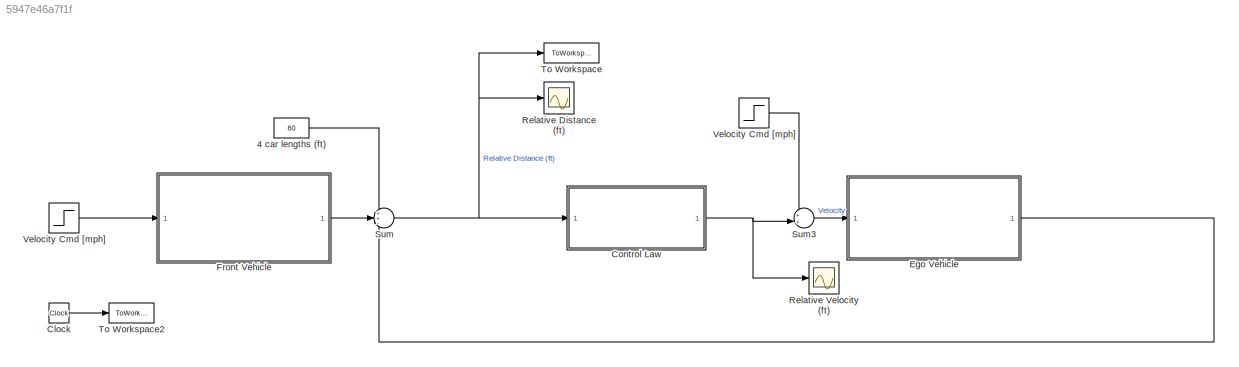
MODEL slx_5947e46a7f1f
KIND model
CONFIG AbsTol = auto
CONFIG EnableMultiTasking = off
CONFIG FixedStep = 0.05
CONFIG MaxStep = auto
CONFIG MinStep = auto
CONFIG RelTol = 1e-3
CONFIG SampleTimeConstraint = Unconstrained
CONFIG Solver = FixedStepAuto
CONFIG SolverName = FixedStepAuto
CONFIG StartTime = 0.0
CONFIG StopTime = 40
BLOCK [Constant] 4 car lengths (ft)
  Value = 60
BLOCK [Clock] Clock
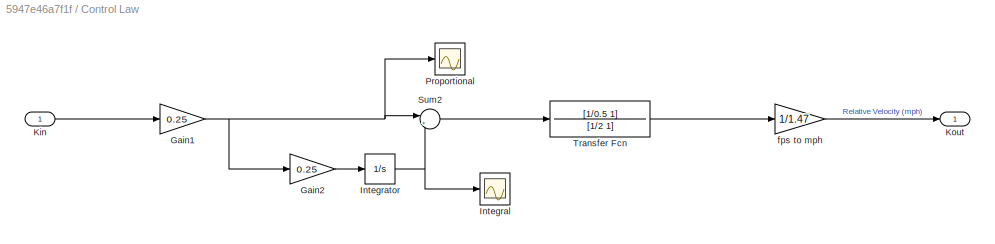
BLOCK [SubSystem] Control Law
  Ports = [1, 1]
  RequestExecContextInheritance = off
BLOCK [Gain] Control Law/Gain1
  Gain = 0.25
  OutDataTypeStr = Inherit: Inherit via internal rule
  ParamDataTypeStr = Inherit: Inherit via internal rule
  SaturateOnIntegerOverflow = off
BLOCK [Gain] Control Law/Gain2
  Gain = 0.25
  OutDataTypeStr = Inherit: Inherit via internal rule
  ParamDataTypeStr = Inherit: Inherit via internal rule
  SaturateOnIntegerOverflow = off
BLOCK [Scope] Control Law/Integral
  Floating = off
  NumInputPorts = 1
  Ports = [1]
  ScopeSpecificationString = Simulink.scopes.TimeScopeBlockCfg('CurrentConfiguration', extmgr.ConfigurationSet(extmgr.Configuration('Core','General UI',true),extmgr.Configuration('Core','Source UI',true),extmgr.Configuration('Sources','WiredSimulink',true,'DataLoggingVariableName','ScopeData3'),extmgr.Configuration('Visuals','Time Domain',true,'SerializedDisplays',{struct('MinYLimReal','-2.60562','MaxYLimReal','23.45057','YLa...<+1402ch>
BLOCK [Integrator] Control Law/Integrator
  Ports = [1, 1]
BLOCK [Inport] Control Law/Kin
  IconDisplay = Port number
BLOCK [Outport] Control Law/Kout
  IconDisplay = Port number
BLOCK [Scope] Control Law/Proportional
  Floating = off
  NumInputPorts = 1
  Ports = [1]
  ScopeSpecificationString = Simulink.scopes.TimeScopeBlockCfg('CurrentConfiguration', extmgr.ConfigurationSet(extmgr.Configuration('Core','General UI',true),extmgr.Configuration('Core','Source UI',true),extmgr.Configuration('Sources','WiredSimulink',true,'DataLoggingVariableName','ScopeData4'),extmgr.Configuration('Visuals','Time Domain',true,'SerializedDisplays',{struct('MinYLimReal','-2.10687','MaxYLimReal','33.56743','YLa...<+1397ch>
BLOCK [Sum] Control Law/Sum2
  IconShape = round
  InputSameDT = off
  Inputs = |++
  OutDataTypeStr = Inherit: Inherit via internal rule
  Ports = [2, 1]
  SaturateOnIntegerOverflow = off
BLOCK [TransferFcn] Control Law/Transfer Fcn
  Denominator = [1/2 1]
  Numerator = [1/0.5 1]
BLOCK [Gain] Control Law/fps to mph
  Gain = 1/1.47
  OutDataTypeStr = Inherit: Inherit via internal rule
  ParamDataTypeStr = Inherit: Inherit via internal rule
  SaturateOnIntegerOverflow = off
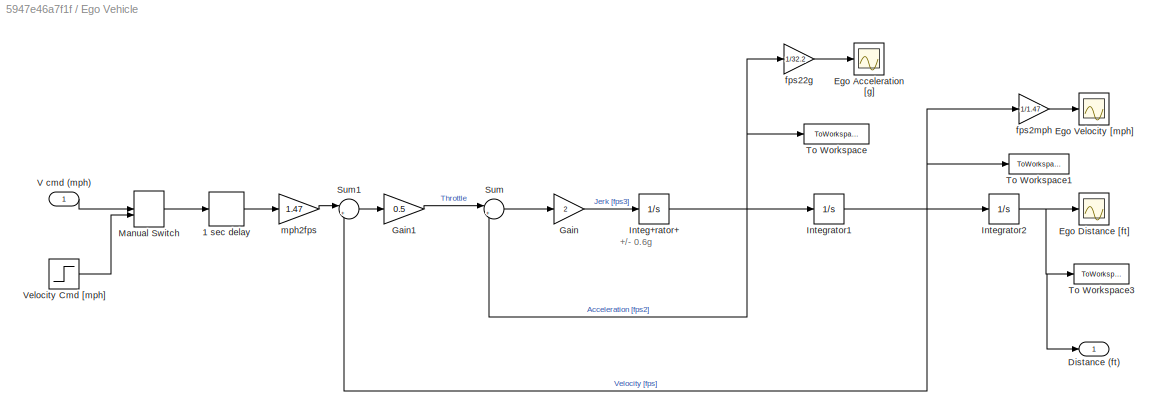
BLOCK [SubSystem] Ego Vehicle
  Ports = [1, 1]
  RequestExecContextInheritance = off
BLOCK [Delay] Ego Vehicle/1 sec delay
  DelayLength = 1
  InitialCondition = 45
  InputPortMap = u0
  Ports = [1, 1]
BLOCK [Outport] Ego Vehicle/Distance (ft)
  IconDisplay = Port number
BLOCK [Scope] Ego Vehicle/Ego Acceleration [g]
  Floating = off
  NumInputPorts = 1
  Ports = [1]
  ScopeSpecificationString = Simulink.scopes.TimeScopeBlockCfg('CurrentConfiguration', extmgr.ConfigurationSet(extmgr.Configuration('Core','General UI',true),extmgr.Configuration('Core','Source UI',true),extmgr.Configuration('Sources','WiredSimulink',true,'DataLoggingVariableName','ScopeData2'),extmgr.Configuration('Visuals','Time Domain',true,'SerializedDisplays',{struct('MinYLimReal','-0.16419','MaxYLimReal','0.68491','YLab...<+1440ch>
BLOCK [Scope] Ego Vehicle/Ego Distance [ft]
  Floating = off
  NumInputPorts = 1
  Ports = [1]
  ScopeSpecificationString = Simulink.scopes.TimeScopeBlockCfg('CurrentConfiguration', extmgr.ConfigurationSet(extmgr.Configuration('Core','General UI',true),extmgr.Configuration('Core','Source UI',true),extmgr.Configuration('Sources','WiredSimulink',true),extmgr.Configuration('Visuals','Time Domain',true,'SerializedDisplays',{struct('MinYLimReal','-413.69182','MaxYLimReal','3723.22634','YLabelReal','','MinYLimMag',' 0.00000'...<+1379ch>
BLOCK [Scope] Ego Vehicle/Ego Velocity [mph]
  Floating = off
  NumInputPorts = 1
  Ports = [1]
  ScopeSpecificationString = Simulink.scopes.TimeScopeBlockCfg('CurrentConfiguration', extmgr.ConfigurationSet(extmgr.Configuration('Core','General UI',true),extmgr.Configuration('Core','Source UI',true),extmgr.Configuration('Sources','WiredSimulink',true,'DataLoggingVariableName','ScopeData1'),extmgr.Configuration('Visuals','Time Domain',true,'SerializedDisplays',{struct('MinYLimReal','41.90679','MaxYLimReal','72.83889','YLa...<+1427ch>
BLOCK [Gain] Ego Vehicle/Gain
  Gain = 2
  OutDataTypeStr = Inherit: Inherit via internal rule
  ParamDataTypeStr = Inherit: Inherit via internal rule
  SaturateOnIntegerOverflow = off
BLOCK [Gain] Ego Vehicle/Gain1
  Gain = 0.5
  OutDataTypeStr = Inherit: Inherit via internal rule
  ParamDataTypeStr = Inherit: Inherit via internal rule
  SaturateOnIntegerOverflow = off
BLOCK [Integrator] Ego Vehicle/Integ+rator+
  LimitOutput = on
  LowerSaturationLimit = -0.6*32.2
  Ports = [1, 1]
  UpperSaturationLimit = 0.6*32.2
BLOCK [Integrator] Ego Vehicle/Integrator1
  InitialCondition = 45*1.47
  Ports = [1, 1]
BLOCK [Integrator] Ego Vehicle/Integrator2
  Ports = [1, 1]
BLOCK [ManualSwitch] Ego Vehicle/Manual Switch
BLOCK [Sum] Ego Vehicle/Sum
  IconShape = round
  InputSameDT = off
  Inputs = |+-
  OutDataTypeStr = Inherit: Inherit via internal rule
  Ports = [2, 1]
  SaturateOnIntegerOverflow = off
BLOCK [Sum] Ego Vehicle/Sum1
  IconShape = round
  InputSameDT = off
  Inputs = |+-
  OutDataTypeStr = Inherit: Inherit via internal rule
  Ports = [2, 1]
  SaturateOnIntegerOverflow = off
BLOCK [ToWorkspace] Ego Vehicle/To Workspace
  FixptAsFi = on
  MaxDataPoints = inf
  Ports = [1]
  SampleTime = -1
  Save2DSignal = 3-D array (concatenate along third dimension)
  VariableName = accel_ego
BLOCK [ToWorkspace] Ego Vehicle/To Workspace1
  FixptAsFi = on
  MaxDataPoints = inf
  Ports = [1]
  SampleTime = -1
  Save2DSignal = 3-D array (concatenate along third dimension)
  VariableName = vel_ego
BLOCK [ToWorkspace] Ego Vehicle/To Workspace3
  FixptAsFi = on
  MaxDataPoints = inf
  Ports = [1]
  SampleTime = -1
  Save2DSignal = 3-D array (concatenate along third dimension)
  VariableName = dist_ego
BLOCK [Inport] Ego Vehicle/V cmd (mph)
  IconDisplay = Port number
BLOCK [Step] Ego Vehicle/Velocity Cmd [mph]
  After = 0
  Before = 20
  SampleTime = 0
  Time = 0
BLOCK [Gain] Ego Vehicle/fps22g
  Gain = 1/32.2
  OutDataTypeStr = Inherit: Inherit via internal rule
  ParamDataTypeStr = Inherit: Inherit via internal rule
  SaturateOnIntegerOverflow = off
BLOCK [Gain] Ego Vehicle/fps2mph
  Gain = 1/1.47
  OutDataTypeStr = Inherit: Inherit via internal rule
  ParamDataTypeStr = Inherit: Inherit via internal rule
  SaturateOnIntegerOverflow = off
BLOCK [Gain] Ego Vehicle/mph2fps
  Gain = 1.47
  OutDataTypeStr = Inherit: Inherit via internal rule
  ParamDataTypeStr = Inherit: Inherit via internal rule
  SaturateOnIntegerOverflow = off
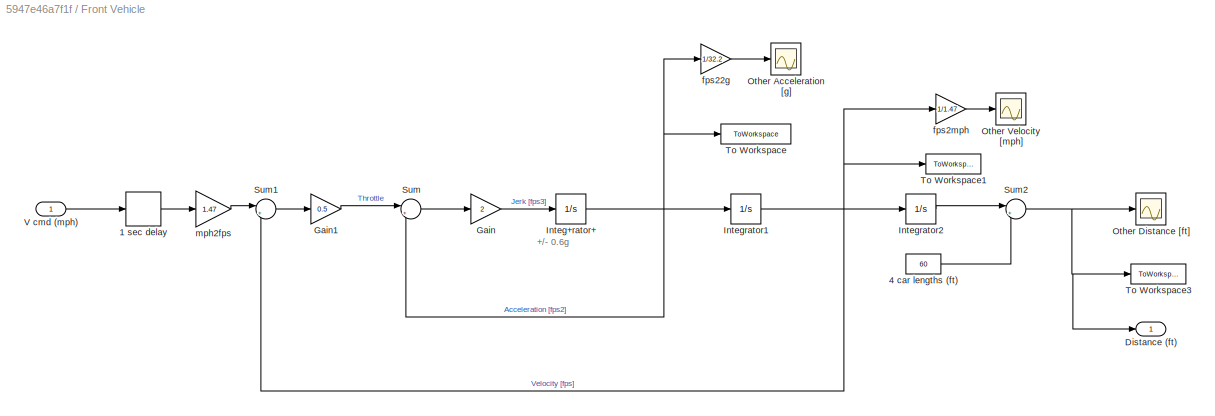
BLOCK [SubSystem] Front Vehicle
  Ports = [1, 1]
  RequestExecContextInheritance = off
BLOCK [Delay] Front Vehicle/1 sec delay
  DelayLength = 1
  InitialCondition = 45
  InputPortMap = u0
  Ports = [1, 1]
BLOCK [Constant] Front Vehicle/4 car lengths (ft)
  Value = 60
BLOCK [Outport] Front Vehicle/Distance (ft)
  IconDisplay = Port number
BLOCK [Gain] Front Vehicle/Gain
  Gain = 2
  OutDataTypeStr = Inherit: Inherit via internal rule
  ParamDataTypeStr = Inherit: Inherit via internal rule
  SaturateOnIntegerOverflow = off
BLOCK [Gain] Front Vehicle/Gain1
  Gain = 0.5
  OutDataTypeStr = Inherit: Inherit via internal rule
  ParamDataTypeStr = Inherit: Inherit via internal rule
  SaturateOnIntegerOverflow = off
BLOCK [Integrator] Front Vehicle/Integ+rator+
  LimitOutput = on
  LowerSaturationLimit = -0.6*32.2
  Ports = [1, 1]
  UpperSaturationLimit = 0.6*32.2
BLOCK [Integrator] Front Vehicle/Integrator1
  InitialCondition = 45*1.47
  Ports = [1, 1]
BLOCK [Integrator] Front Vehicle/Integrator2
  Ports = [1, 1]
BLOCK [Scope] Front Vehicle/Other Acceleration [g]
  Floating = off
  NumInputPorts = 1
  Ports = [1]
  ScopeSpecificationString = Simulink.scopes.TimeScopeBlockCfg('CurrentConfiguration', extmgr.ConfigurationSet(extmgr.Configuration('Core','General UI',true),extmgr.Configuration('Core','Source UI',true),extmgr.Configuration('Sources','WiredSimulink',true,'DataLoggingVariableName','ScopeData2'),extmgr.Configuration('Visuals','Time Domain',true,'SerializedDisplays',{struct('MinYLimReal','-1.00000','MaxYLimReal','1.00000','YLab...<+1440ch>
BLOCK [Scope] Front Vehicle/Other Distance [ft]
  Floating = off
  NumInputPorts = 1
  Ports = [1]
  ScopeSpecificationString = Simulink.scopes.TimeScopeBlockCfg('CurrentConfiguration', extmgr.ConfigurationSet(extmgr.Configuration('Core','General UI',true),extmgr.Configuration('Core','Source UI',true),extmgr.Configuration('Sources','WiredSimulink',true),extmgr.Configuration('Visuals','Time Domain',true,'SerializedDisplays',{struct('MinYLimReal','-338.64563','MaxYLimReal','3647.81063','YLabelReal','','MinYLimMag',' 0.00000'...<+1372ch>
BLOCK [Scope] Front Vehicle/Other Velocity [mph]
  Floating = off
  NumInputPorts = 1
  Ports = [1]
  ScopeSpecificationString = Simulink.scopes.TimeScopeBlockCfg('CurrentConfiguration', extmgr.ConfigurationSet(extmgr.Configuration('Core','General UI',true),extmgr.Configuration('Core','Source UI',true),extmgr.Configuration('Sources','WiredSimulink',true,'DataLoggingVariableName','ScopeData1'),extmgr.Configuration('Visuals','Time Domain',true,'SerializedDisplays',{struct('MinYLimReal','43.75','MaxYLimReal','56.25','YLabelRea...<+1403ch>
BLOCK [Sum] Front Vehicle/Sum
  IconShape = round
  InputSameDT = off
  Inputs = |+-
  OutDataTypeStr = Inherit: Inherit via internal rule
  Ports = [2, 1]
  SaturateOnIntegerOverflow = off
BLOCK [Sum] Front Vehicle/Sum1
  IconShape = round
  InputSameDT = off
  Inputs = |+-
  OutDataTypeStr = Inherit: Inherit via internal rule
  Ports = [2, 1]
  SaturateOnIntegerOverflow = off
BLOCK [Sum] Front Vehicle/Sum2
  IconShape = round
  InputSameDT = off
  Inputs = |++
  OutDataTypeStr = Inherit: Inherit via internal rule
  Ports = [2, 1]
  SaturateOnIntegerOverflow = off
BLOCK [ToWorkspace] Front Vehicle/To Workspace
  FixptAsFi = on
  MaxDataPoints = inf
  Ports = [1]
  SampleTime = -1
  Save2DSignal = 3-D array (concatenate along third dimension)
  VariableName = accel_other
BLOCK [ToWorkspace] Front Vehicle/To Workspace1
  FixptAsFi = on
  MaxDataPoints = inf
  Ports = [1]
  SampleTime = -1
  Save2DSignal = 3-D array (concatenate along third dimension)
  VariableName = vel_other
BLOCK [ToWorkspace] Front Vehicle/To Workspace3
  FixptAsFi = on
  MaxDataPoints = inf
  Ports = [1]
  SampleTime = -1
  Save2DSignal = 3-D array (concatenate along third dimension)
  VariableName = dist_other
BLOCK [Inport] Front Vehicle/V cmd (mph)
  IconDisplay = Port number
BLOCK [Gain] Front Vehicle/fps22g
  Gain = 1/32.2
  OutDataTypeStr = Inherit: Inherit via internal rule
  ParamDataTypeStr = Inherit: Inherit via internal rule
  SaturateOnIntegerOverflow = off
BLOCK [Gain] Front Vehicle/fps2mph
  Gain = 1/1.47
  OutDataTypeStr = Inherit: Inherit via internal rule
  ParamDataTypeStr = Inherit: Inherit via internal rule
  SaturateOnIntegerOverflow = off
BLOCK [Gain] Front Vehicle/mph2fps
  Gain = 1.47
  OutDataTypeStr = Inherit: Inherit via internal rule
  ParamDataTypeStr = Inherit: Inherit via internal rule
  SaturateOnIntegerOverflow = off
BLOCK [Scope] Relative Distance (ft)
  Floating = off
  NumInputPorts = 1
  Ports = [1]
  ScopeSpecificationString = Simulink.scopes.TimeScopeBlockCfg('CurrentConfiguration', extmgr.ConfigurationSet(extmgr.Configuration('Core','General UI',true),extmgr.Configuration('Core','Source UI',true),extmgr.Configuration('Sources','WiredSimulink',true,'DataLoggingVariableName','ScopeData1'),extmgr.Configuration('Visuals','Time Domain',true,'SerializedDisplays',{struct('MinYLimReal','-8.42749','MaxYLimReal','134.26972','YL...<+1420ch>
BLOCK [Scope] Relative Velocity (ft)
  Floating = off
  NumInputPorts = 1
  Ports = [1]
  ScopeSpecificationString = Simulink.scopes.TimeScopeBlockCfg('CurrentConfiguration', extmgr.ConfigurationSet(extmgr.Configuration('Core','General UI',true),extmgr.Configuration('Core','Source UI',true),extmgr.Configuration('Sources','WiredSimulink',true,'DataLoggingVariableName','ScopeData2'),extmgr.Configuration('Visuals','Time Domain',true,'SerializedDisplays',{struct('MinYLimReal','-1.68414','MaxYLimReal','90.89007','YLa...<+1429ch>
BLOCK [Sum] Sum
  IconShape = round
  InputSameDT = off
  Inputs = ++-
  OutDataTypeStr = Inherit: Inherit via internal rule
  Ports = [3, 1]
  SaturateOnIntegerOverflow = off
BLOCK [Sum] Sum3
  IconShape = round
  InputSameDT = off
  Inputs = ++|
  OutDataTypeStr = Inherit: Inherit via internal rule
  Ports = [2, 1]
  SaturateOnIntegerOverflow = off
BLOCK [ToWorkspace] To Workspace
  FixptAsFi = on
  MaxDataPoints = inf
  Ports = [1]
  SampleTime = -1
  Save2DSignal = 3-D array (concatenate along third dimension)
  SaveFormat = Timeseries
  VariableName = rel_dist
BLOCK [ToWorkspace] To Workspace2
  FixptAsFi = on
  MaxDataPoints = inf
  Ports = [1]
  SampleTime = -1
  Save2DSignal = 3-D array (concatenate along third dimension)
  VariableName = time
BLOCK [Step] Velocity Cmd [mph]
  After = 55
  Before = 45
  SampleTime = 0
BLOCK [Step] Velocity Cmd [mph] 
  After = 45
  Before = 45
  SampleTime = 0
ANNOTATION Ego Vehicle: +/- 0.6g
ANNOTATION Front Vehicle: +/- 0.6g
LINE 4 car lengths (ft):1 -> Sum:1
LINE Clock:1 -> To Workspace2:1
NET Control Law/Gain1:1 -> Control Law/Gain2:1, Control Law/Proportional:1, Control Law/Sum2:1
LINE Control Law/Gain2:1 -> Control Law/Integrator:1
NET Control Law/Integrator:1 -> Control Law/Integral:1, Control Law/Sum2:2
LINE Control Law/Kin:1 -> Control Law/Gain1:1
LINE Control Law/Sum2:1 -> Control Law/Transfer Fcn:1
LINE Control Law/Transfer Fcn:1 -> Control Law/fps to mph:1
LINE Control Law/fps to mph:1 -> Control Law/Kout:1
NET Control Law:1 -> Relative Velocity (ft):1, Sum3:2
LINE Ego Vehicle/1 sec delay:1 -> Ego Vehicle/mph2fps:1
LINE Ego Vehicle/Gain1:1 -> Ego Vehicle/Sum:1
LINE Ego Vehicle/Gain:1 -> Ego Vehicle/Integ+rator+:1
NET Ego Vehicle/Integ+rator+:1 -> Ego Vehicle/Integrator1:1, Ego Vehicle/Sum:2, Ego Vehicle/To Workspace:1, Ego Vehicle/fps22g:1
NET Ego Vehicle/Integrator1:1 -> Ego Vehicle/Integrator2:1, Ego Vehicle/Sum1:2, Ego Vehicle/To Workspace1:1, Ego Vehicle/fps2mph:1
NET Ego Vehicle/Integrator2:1 -> Ego Vehicle/Distance (ft):1, Ego Vehicle/Ego Distance [ft]:1, Ego Vehicle/To Workspace3:1
LINE Ego Vehicle/Manual Switch:1 -> Ego Vehicle/1 sec delay:1
LINE Ego Vehicle/Sum1:1 -> Ego Vehicle/Gain1:1
LINE Ego Vehicle/Sum:1 -> Ego Vehicle/Gain:1
LINE Ego Vehicle/V cmd (mph):1 -> Ego Vehicle/Manual Switch:1
LINE Ego Vehicle/Velocity Cmd [mph]:1 -> Ego Vehicle/Manual Switch:2
LINE Ego Vehicle/fps22g:1 -> Ego Vehicle/Ego Acceleration [g]:1
LINE Ego Vehicle/fps2mph:1 -> Ego Vehicle/Ego Velocity [mph]:1
LINE Ego Vehicle/mph2fps:1 -> Ego Vehicle/Sum1:1
LINE Ego Vehicle:1 -> Sum:3
LINE Front Vehicle/1 sec delay:1 -> Front Vehicle/mph2fps:1
LINE Front Vehicle/4 car lengths (ft):1 -> Front Vehicle/Sum2:2
LINE Front Vehicle/Gain1:1 -> Front Vehicle/Sum:1
LINE Front Vehicle/Gain:1 -> Front Vehicle/Integ+rator+:1
NET Front Vehicle/Integ+rator+:1 -> Front Vehicle/Integrator1:1, Front Vehicle/Sum:2, Front Vehicle/To Workspace:1, Front Vehicle/fps22g:1
NET Front Vehicle/Integrator1:1 -> Front Vehicle/Integrator2:1, Front Vehicle/Sum1:2, Front Vehicle/To Workspace1:1, Front Vehicle/fps2mph:1
LINE Front Vehicle/Integrator2:1 -> Front Vehicle/Sum2:1
LINE Front Vehicle/Sum1:1 -> Front Vehicle/Gain1:1
NET Front Vehicle/Sum2:1 -> Front Vehicle/Distance (ft):1, Front Vehicle/Other Distance [ft]:1, Front Vehicle/To Workspace3:1
LINE Front Vehicle/Sum:1 -> Front Vehicle/Gain:1
LINE Front Vehicle/V cmd (mph):1 -> Front Vehicle/1 sec delay:1
LINE Front Vehicle/fps22g:1 -> Front Vehicle/Other Acceleration [g]:1
LINE Front Vehicle/fps2mph:1 -> Front Vehicle/Other Velocity [mph]:1
LINE Front Vehicle/mph2fps:1 -> Front Vehicle/Sum1:1
LINE Front Vehicle:1 -> Sum:2
LINE Sum3:1 -> Ego Vehicle:1
NET Sum:1 -> Control Law:1, Relative Distance (ft):1, To Workspace:1
LINE Velocity Cmd [mph] :1 -> Sum3:1
LINE Velocity Cmd [mph]:1 -> Front Vehicle:1
note: NET lines group one-source signal fan-out (src -> all destinations, sorted); 1:1 wires keep LINE
